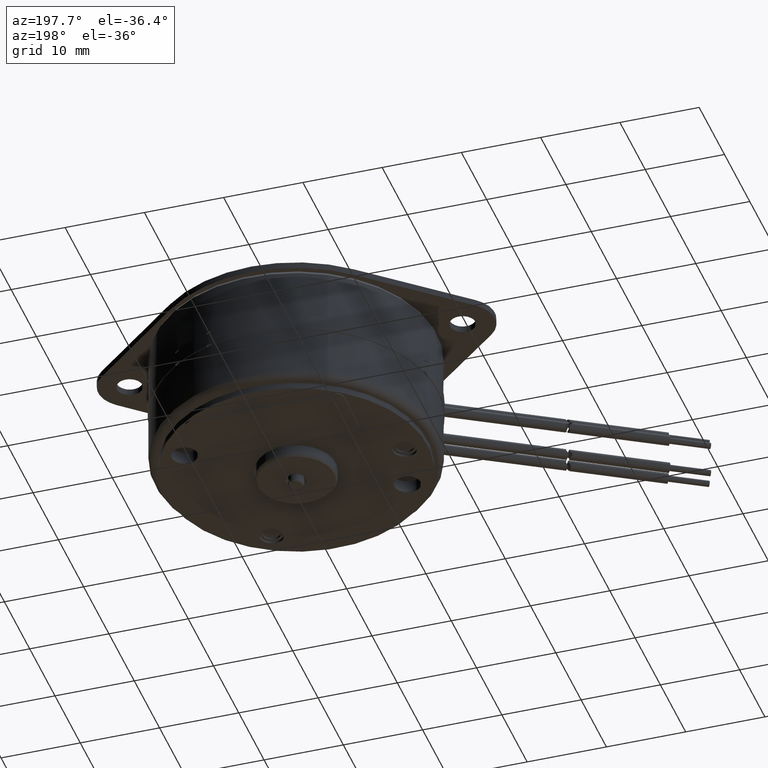
[diagram: clean part render]
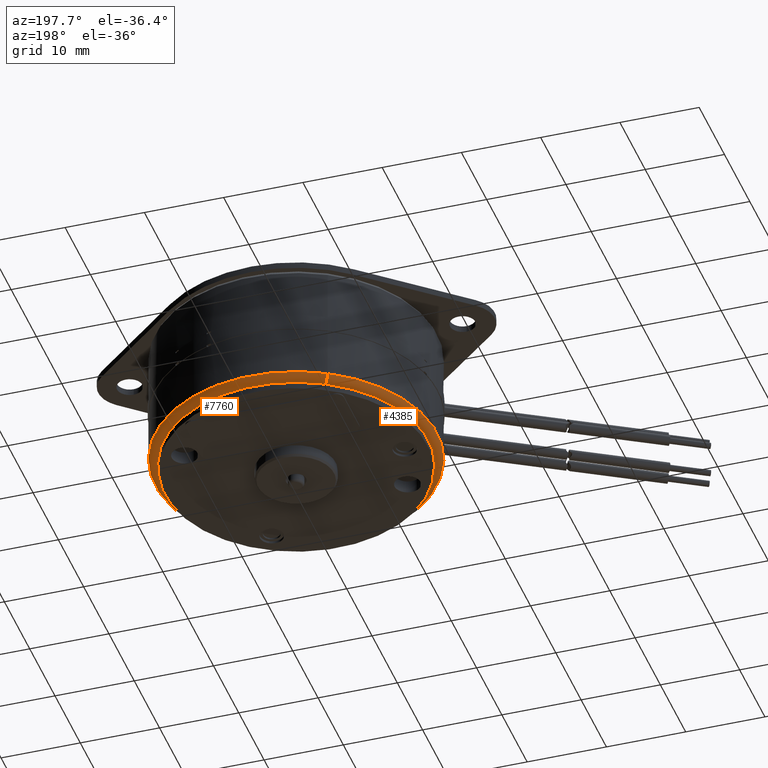
[diagram: same view with one multi-face feature highlighted, each face labeled with its STEP entity id]
A machine part, auxiliary view. The highlighted faces form ONE feature: a constant-radius fillet chain: 2 tangent blend faces with common blend radius 1.1938 mm. The faces share edges in the B-rep.
Their STEP definitions:
[1] entity #4385 (Torus):
#109=CARTESIAN_POINT('',(0.E0,0.E0,-3.2E-1));
#110=DIRECTION('',(0.E0,0.E0,1.E0));
#111=DIRECTION('',(-5.000000000001E-1,8.660254037844E-1,0.E0));
#112=AXIS2_PLACEMENT_3D('',#109,#110,#111);
#129=CARTESIAN_POINT('',(0.E0,0.E0,-2.895227116419E-1));
#130=DIRECTION('',(0.E0,0.E0,1.E0));
#131=DIRECTION('',(-5.E-1,8.660254037844E-1,0.E0));
#132=AXIS2_PLACEMENT_3D('',#129,#130,#131);
#3010=CARTESIAN_POINT('',(-3.277500000001E-1,5.676796521807E-1,-2.73E-1));
#3011=DIRECTION('',(-8.660254037844E-1,-5.000000000001E-1,0.E0));
#3012=DIRECTION('',(-4.680851063829E-1,8.107471865213E-1,-3.515470562105E-1));
#3013=AXIS2_PLACEMENT_3D('',#3010,#3011,#3012);
#3015=CARTESIAN_POINT('',(3.277500000002E-1,-5.676796521806E-1,-2.73E-1));
#3016=DIRECTION('',(-8.660254037843E-1,-5.000000000003E-1,0.E0));
#3017=DIRECTION('',(0.E0,0.E0,-1.E0));
#3018=AXIS2_PLACEMENT_3D('',#3015,#3016,#3017);
#3826=CARTESIAN_POINT('',(3.497500000001E-1,-6.057847699471E-1,
-2.895227116419E-1));
#3827=VERTEX_POINT('',#3826);
#3828=CARTESIAN_POINT('',(-3.4975E-1,6.057847699472E-1,-2.895227116419E-1));
#3829=VERTEX_POINT('',#3828);
#3987=CARTESIAN_POINT('',(-3.277500000001E-1,5.676796521807E-1,-3.2E-1));
#3988=VERTEX_POINT('',#3987);
#3989=CARTESIAN_POINT('',(3.2775E-1,-5.676796521807E-1,-3.2E-1));
#3990=VERTEX_POINT('',#3989);
#4371=CARTESIAN_POINT('',(0.E0,0.E0,-2.73E-1));
#4372=DIRECTION('',(0.E0,0.E0,1.E0));
#4373=DIRECTION('',(-5.000000000001E-1,8.660254037844E-1,0.E0));
#4374=AXIS2_PLACEMENT_3D('',#4371,#4372,#4373);
#4375=TOROIDAL_SURFACE('',#4374,6.555E-1,4.7E-2);
#4377=ORIENTED_EDGE('',*,*,#4376,.T.);
#4379=ORIENTED_EDGE('',*,*,#4378,.F.);
#4380=ORIENTED_EDGE('',*,*,#4359,.F.);
#4382=ORIENTED_EDGE('',*,*,#4381,.F.);
#4383=EDGE_LOOP('',(#4377,#4379,#4380,#4382));
#4384=FACE_OUTER_BOUND('',#4383,.F.);
#4385=ADVANCED_FACE('',(#4384),#4375,.T.);
#113=CIRCLE('',#112,6.555E-1);
#133=CIRCLE('',#132,6.995E-1);
#3014=CIRCLE('',#3013,4.7E-2);
#3019=CIRCLE('',#3018,4.7E-2);
#4359=EDGE_CURVE('',#3988,#3990,#113,.T.);
#4376=EDGE_CURVE('',#3829,#3827,#133,.T.);
#4378=EDGE_CURVE('',#3990,#3827,#3019,.T.);
#4381=EDGE_CURVE('',#3829,#3988,#3014,.T.);
[2] entity #7760 (Torus):
#114=CARTESIAN_POINT('',(0.E0,0.E0,-3.2E-1));
#115=DIRECTION('',(0.E0,0.E0,1.E0));
#116=DIRECTION('',(5.000000000001E-1,-8.660254037844E-1,0.E0));
#117=AXIS2_PLACEMENT_3D('',#114,#115,#116);
#3005=CARTESIAN_POINT('',(0.E0,0.E0,-2.895227116419E-1));
#3006=DIRECTION('',(0.E0,0.E0,1.E0));
#3007=DIRECTION('',(5.000000000001E-1,-8.660254037844E-1,0.E0));
#3008=AXIS2_PLACEMENT_3D('',#3005,#3006,#3007);
#3010=CARTESIAN_POINT('',(-3.277500000001E-1,5.676796521807E-1,-2.73E-1));
#3011=DIRECTION('',(-8.660254037844E-1,-5.000000000001E-1,0.E0));
#3012=DIRECTION('',(-4.680851063829E-1,8.107471865213E-1,-3.515470562105E-1));
#3013=AXIS2_PLACEMENT_3D('',#3010,#3011,#3012);
#3015=CARTESIAN_POINT('',(3.277500000002E-1,-5.676796521806E-1,-2.73E-1));
#3016=DIRECTION('',(-8.660254037843E-1,-5.000000000003E-1,0.E0));
#3017=DIRECTION('',(0.E0,0.E0,-1.E0));
#3018=AXIS2_PLACEMENT_3D('',#3015,#3016,#3017);
#3826=CARTESIAN_POINT('',(3.497500000001E-1,-6.057847699471E-1,
-2.895227116419E-1));
#3827=VERTEX_POINT('',#3826);
#3828=CARTESIAN_POINT('',(-3.4975E-1,6.057847699472E-1,-2.895227116419E-1));
#3829=VERTEX_POINT('',#3828);
#3987=CARTESIAN_POINT('',(-3.277500000001E-1,5.676796521807E-1,-3.2E-1));
#3988=VERTEX_POINT('',#3987);
#3989=CARTESIAN_POINT('',(3.2775E-1,-5.676796521807E-1,-3.2E-1));
#3990=VERTEX_POINT('',#3989);
#7749=CARTESIAN_POINT('',(0.E0,0.E0,-2.73E-1));
#7750=DIRECTION('',(0.E0,0.E0,1.E0));
#7751=DIRECTION('',(-5.000000000001E-1,8.660254037844E-1,0.E0));
#7752=AXIS2_PLACEMENT_3D('',#7749,#7750,#7751);
#7753=TOROIDAL_SURFACE('',#7752,6.555E-1,4.7E-2);
#7754=ORIENTED_EDGE('',*,*,#4487,.T.);
#7755=ORIENTED_EDGE('',*,*,#4381,.T.);
#7756=ORIENTED_EDGE('',*,*,#4361,.F.);
#7757=ORIENTED_EDGE('',*,*,#4378,.T.);
#7758=EDGE_LOOP('',(#7754,#7755,#7756,#7757));
#7759=FACE_OUTER_BOUND('',#7758,.F.);
#7760=ADVANCED_FACE('',(#7759),#7753,.T.);
#118=CIRCLE('',#117,6.555E-1);
#3009=CIRCLE('',#3008,6.995E-1);
#3014=CIRCLE('',#3013,4.7E-2);
#3019=CIRCLE('',#3018,4.7E-2);
#4361=EDGE_CURVE('',#3990,#3988,#118,.T.);
#4378=EDGE_CURVE('',#3990,#3827,#3019,.T.);
#4381=EDGE_CURVE('',#3829,#3988,#3014,.T.);
#4487=EDGE_CURVE('',#3827,#3829,#3009,.T.);